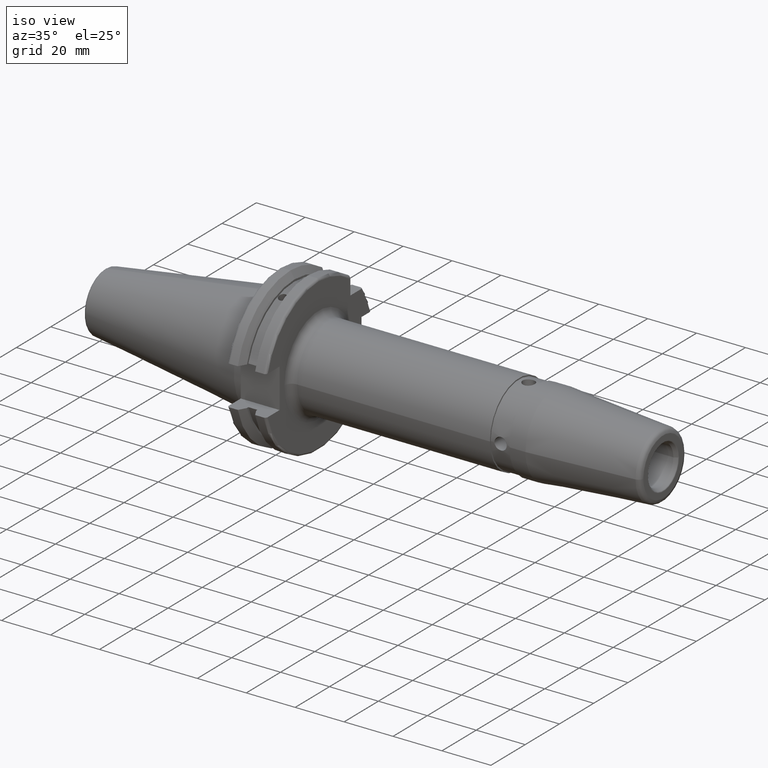
[diagram: clean part render]
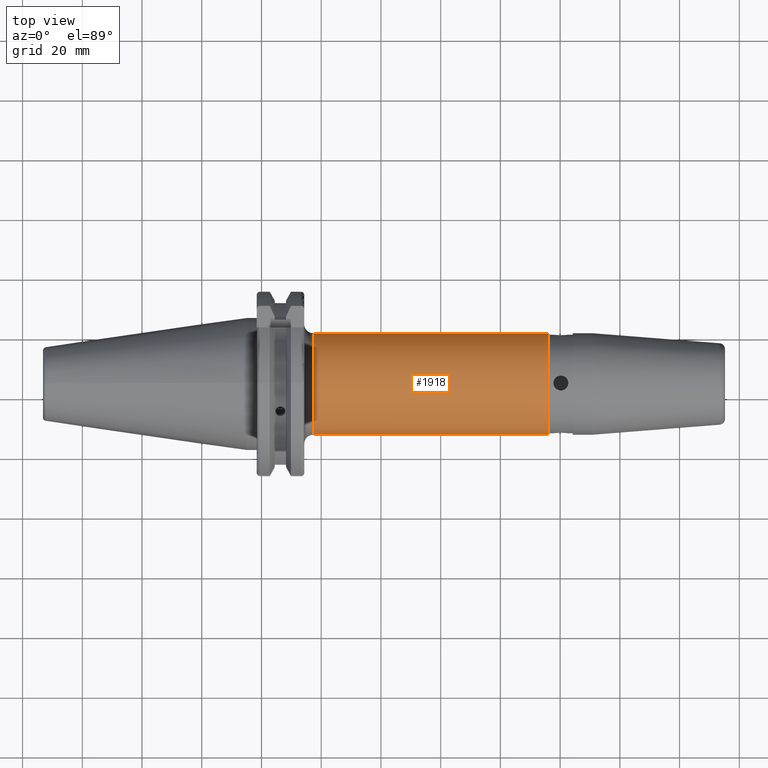
[diagram: tour spotlight — one face highlighted and labeled with its STEP entity id]
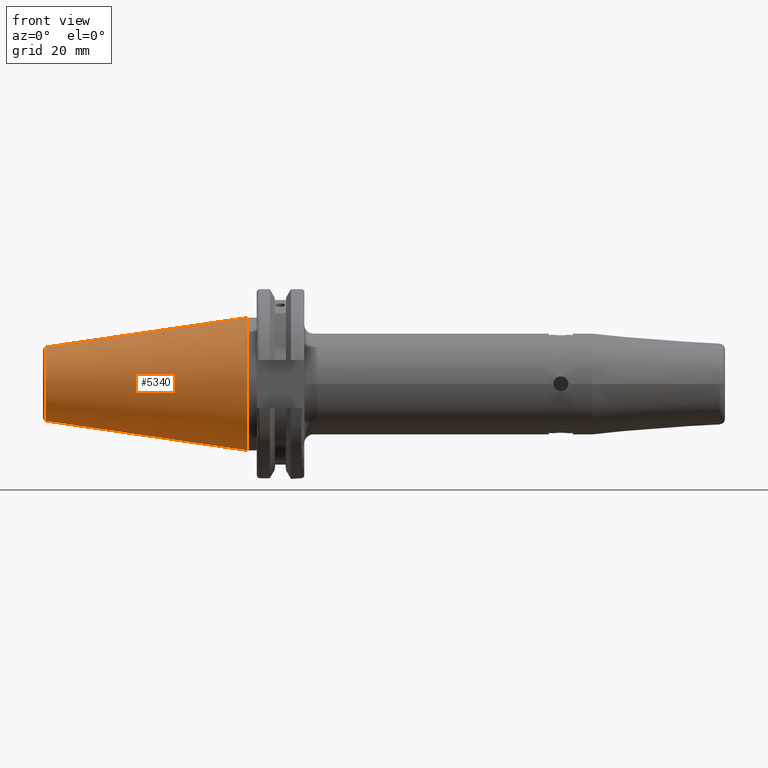
[diagram: tour spotlight — one face highlighted and labeled with its STEP entity id]
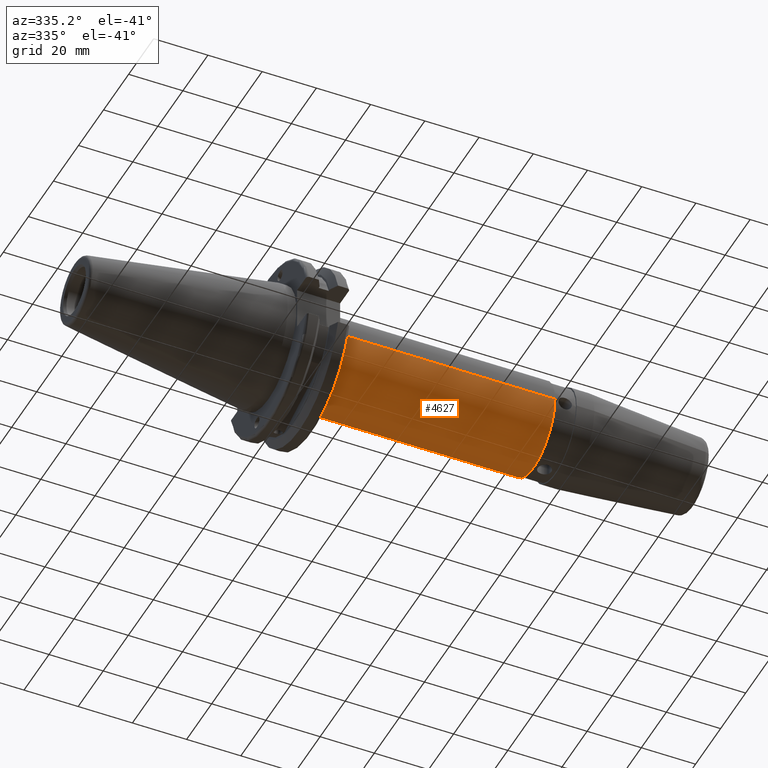
[diagram: tour spotlight — one face highlighted and labeled with its STEP entity id]
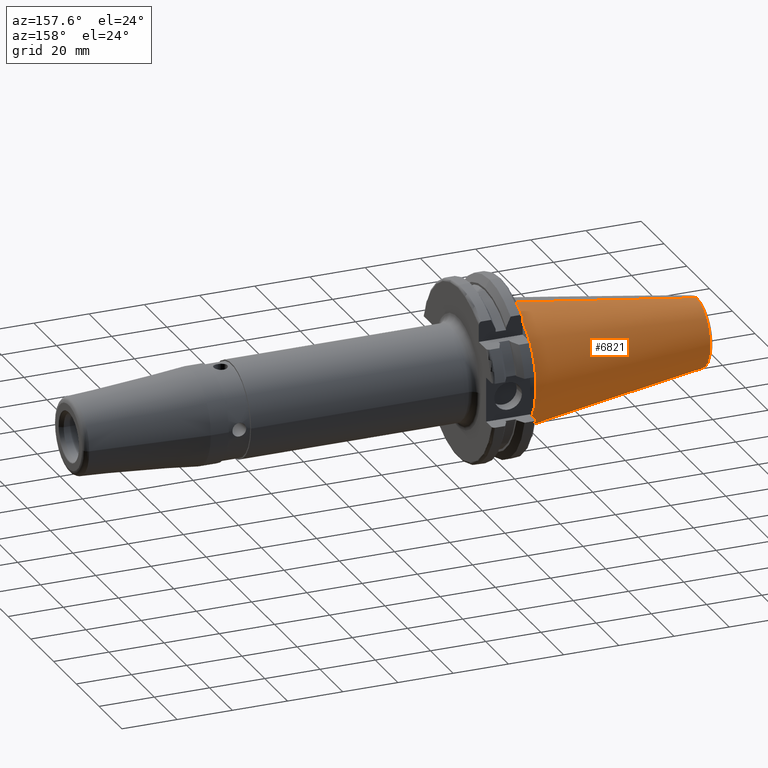
[diagram: tour spotlight — one face highlighted and labeled with its STEP entity id]
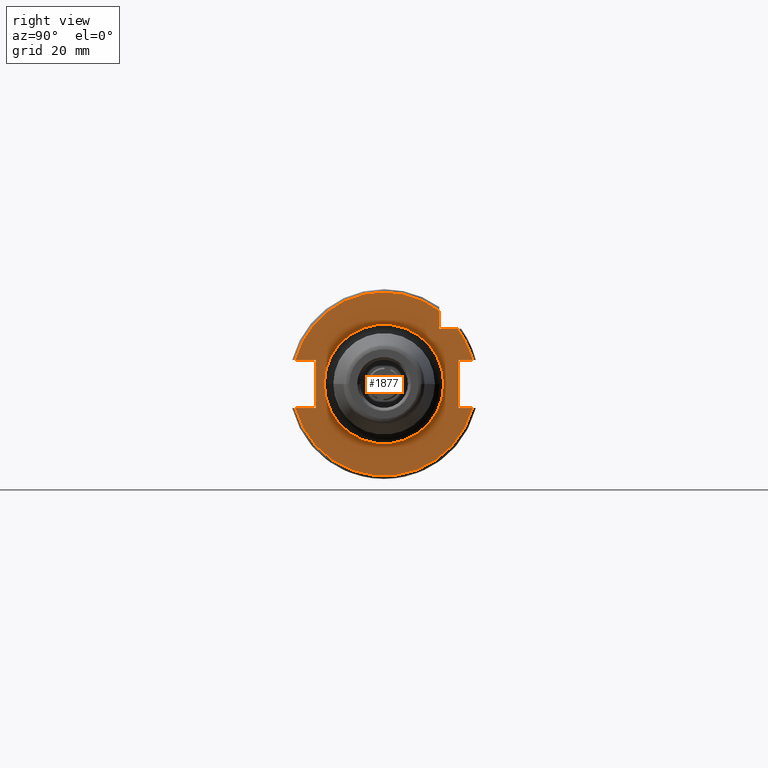
[diagram: tour spotlight — one face highlighted and labeled with its STEP entity id]
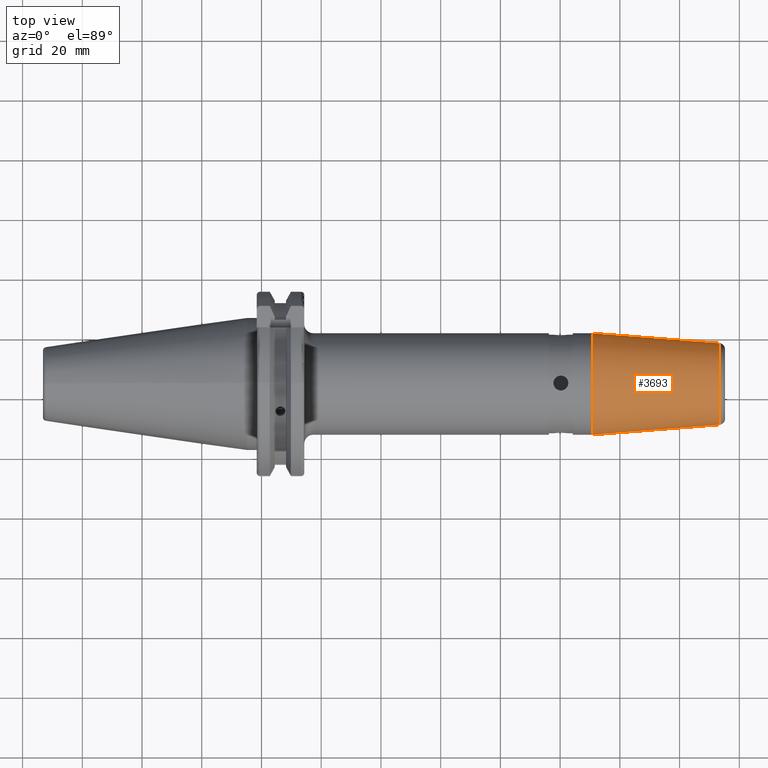
[diagram: tour spotlight — one face highlighted and labeled with its STEP entity id]
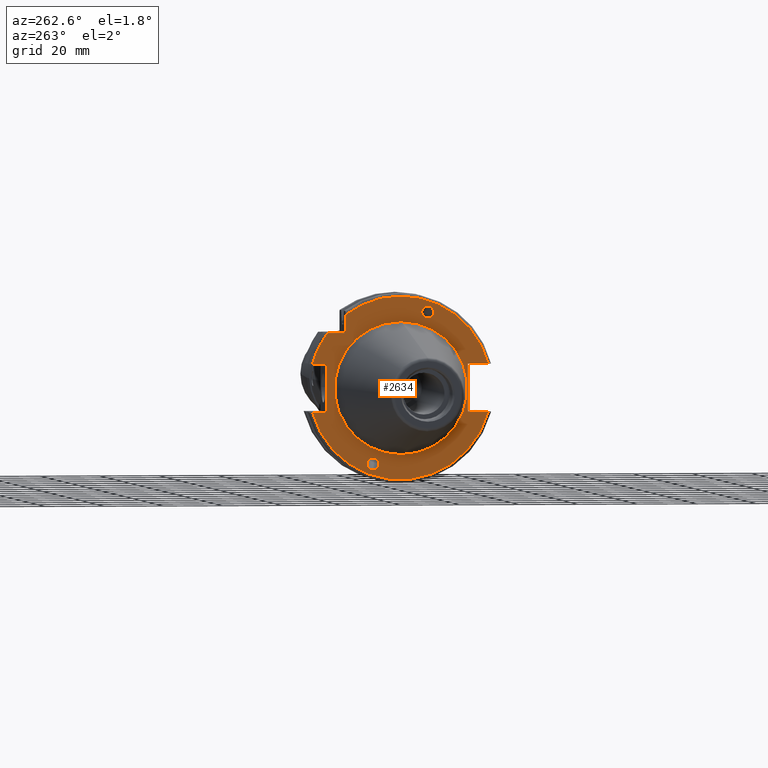
[diagram: tour spotlight — one face highlighted and labeled with its STEP entity id]
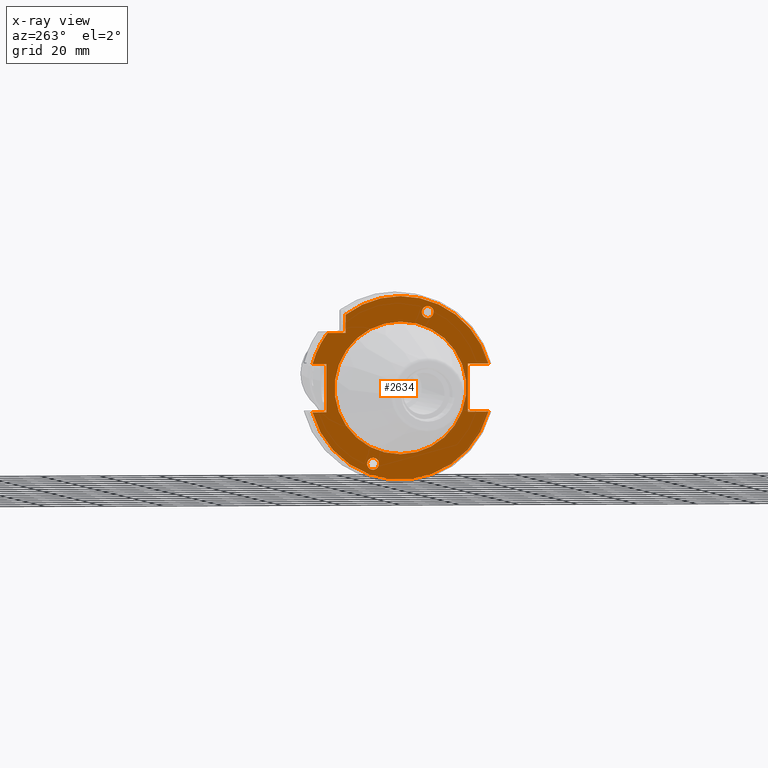
[diagram: x-ray of the same camera — body ghosted, this tour face saturated]
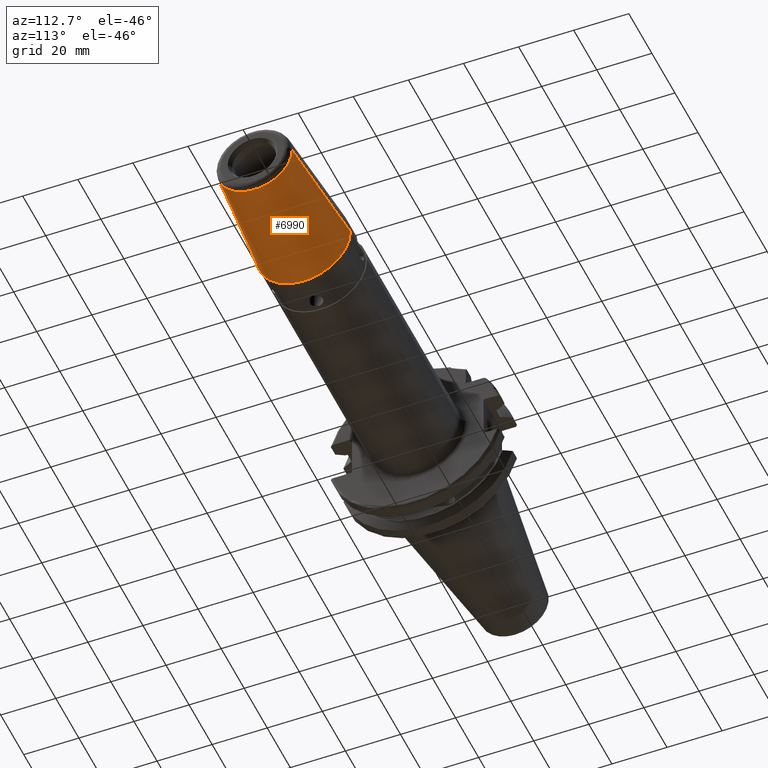
[diagram: tour spotlight — one face highlighted and labeled with its STEP entity id]
A machine part: a face-by-face anatomy tour. The part has 238 B-rep faces; the first image is the clean iso view, then the 8 largest visible faces are spotlighted one at a time (largest first), each with its STEP entity span.

Face 1 — top view, entity #1918. In plain terms, the highlighted cylindrical surface (partial cylindrical patch) has radius 17 mm, axis along (-1, 0, 0).
Definition (entity closure, byte-faithful):
#116 = ORIENTED_EDGE ( 'NONE', *, *, #4703, .F. ) ;
#803 = CIRCLE ( 'NONE', #1233, 17.00000000000000000 ) ;
#1038 = AXIS2_PLACEMENT_3D ( 'NONE', #4816, #1562, #5360 ) ;
#1070 = CARTESIAN_POINT ( 'NONE',  ( 5.775853106663938696, 2.081899558550500280E-15, -17.00000000000000000 ) ) ;
#1125 = VERTEX_POINT ( 'NONE', #3922 ) ;
#1233 = AXIS2_PLACEMENT_3D ( 'NONE', #2194, #5992, #2765 ) ;
#1275 = EDGE_LOOP ( 'NONE', ( #6211, #2809, #2705, #116 ) ) ;
#1318 = VERTEX_POINT ( 'NONE', #5829 ) ;
#1330 = DIRECTION ( 'NONE',  ( -1.000000000000000000, 0.0000000000000000000, 0.0000000000000000000 ) ) ;
#1334 = EDGE_CURVE ( 'NONE', #1125, #6564, #1523, .T. ) ;
#1518 = FACE_OUTER_BOUND ( 'NONE', #1275, .T. ) ;
#1523 = LINE ( 'NONE', #6262, #5675 ) ;
#1562 = DIRECTION ( 'NONE',  ( -1.000000000000000000, 0.0000000000000000000, 0.0000000000000000000 ) ) ;
#1895 = CIRCLE ( 'NONE', #1038, 17.00000000000000355 ) ;
#1918 = ADVANCED_FACE ( 'NONE', ( #1518 ), #5673, .T. ) ;
#2194 = CARTESIAN_POINT ( 'NONE',  ( 101.0000000000244711, 0.0000000000000000000, 0.0000000000000000000 ) ) ;
#2261 = AXIS2_PLACEMENT_3D ( 'NONE', #3466, #1330, #4000 ) ;
#2705 = ORIENTED_EDGE ( 'NONE', *, *, #1334, .T. ) ;
#2765 = DIRECTION ( 'NONE',  ( 0.0000000000000000000, 0.0000000000000000000, 1.000000000000000000 ) ) ;
#2809 = ORIENTED_EDGE ( 'NONE', *, *, #3487, .T. ) ;
#3466 = CARTESIAN_POINT ( 'NONE',  ( 5.775853106663938696, 0.0000000000000000000, 0.0000000000000000000 ) ) ;
#3487 = EDGE_CURVE ( 'NONE', #3701, #1125, #803, .T. ) ;
#3701 = VERTEX_POINT ( 'NONE', #6129 ) ;
#3922 = CARTESIAN_POINT ( 'NONE',  ( 101.0000000000244711, 0.0000000000000000000, 17.00000000000000000 ) ) ;
#4000 = DIRECTION ( 'NONE',  ( 0.0000000000000000000, 0.0000000000000000000, 1.000000000000000000 ) ) ;
#4624 = VECTOR ( 'NONE', #6477, 1000.000000000000000 ) ;
#4665 = CARTESIAN_POINT ( 'NONE',  ( 22.09999999999999787, 0.0000000000000000000, 17.00000000000000355 ) ) ;
#4703 = EDGE_CURVE ( 'NONE', #1318, #6564, #1895, .T. ) ;
#4816 = CARTESIAN_POINT ( 'NONE',  ( 22.09999999999999787, 0.0000000000000000000, 0.0000000000000000000 ) ) ;
#5360 = DIRECTION ( 'NONE',  ( 0.0000000000000000000, 0.0000000000000000000, 1.000000000000000000 ) ) ;
#5658 = EDGE_CURVE ( 'NONE', #3701, #1318, #6066, .T. ) ;
#5673 = CYLINDRICAL_SURFACE ( 'NONE', #2261, 17.00000000000000000 ) ;
#5675 = VECTOR ( 'NONE', #6202, 1000.000000000000000 ) ;
#5829 = CARTESIAN_POINT ( 'NONE',  ( 22.09999999999999787, 2.265596578422603791E-15, -17.00000000000000355 ) ) ;
#5992 = DIRECTION ( 'NONE',  ( -1.000000000000000000, 0.0000000000000000000, 0.0000000000000000000 ) ) ;
#6066 = LINE ( 'NONE', #1070, #4624 ) ;
#6129 = CARTESIAN_POINT ( 'NONE',  ( 101.0000000000244711, 2.081899558550500280E-15, -17.00000000000000000 ) ) ;
#6202 = DIRECTION ( 'NONE',  ( -1.000000000000000000, 0.0000000000000000000, 0.0000000000000000000 ) ) ;
#6211 = ORIENTED_EDGE ( 'NONE', *, *, #5658, .F. ) ;
#6262 = CARTESIAN_POINT ( 'NONE',  ( 5.775853106663938696, 0.0000000000000000000, 17.00000000000000000 ) ) ;
#6477 = DIRECTION ( 'NONE',  ( -1.000000000000000000, 0.0000000000000000000, 0.0000000000000000000 ) ) ;
#6564 = VERTEX_POINT ( 'NONE', #4665 ) ;

Face 2 — front view, entity #5340. In plain terms, the highlighted conical surface has half-angle 8.297 deg.
Definition (entity closure, byte-faithful):
#187 = EDGE_CURVE ( 'NONE', #410, #784, #5043, .T. ) ;
#218 = CONICAL_SURFACE ( 'NONE', #2621, 22.22499999999999787, 0.1448138465474189118 ) ;
#250 = CIRCLE ( 'NONE', #7003, 22.22499999999999787 ) ;
#385 = FACE_OUTER_BOUND ( 'NONE', #3033, .T. ) ;
#410 = VERTEX_POINT ( 'NONE', #1937 ) ;
#448 = VERTEX_POINT ( 'NONE', #1395 ) ;
#784 = VERTEX_POINT ( 'NONE', #1970 ) ;
#1133 = LINE ( 'NONE', #4701, #5632 ) ;
#1136 = DIRECTION ( 'NONE',  ( 0.0000000000000000000, -1.000000000000000000, 0.0000000000000000000 ) ) ;
#1261 = ORIENTED_EDGE ( 'NONE', *, *, #4842, .F. ) ;
#1316 = EDGE_CURVE ( 'NONE', #5089, #448, #250, .T. ) ;
#1395 = CARTESIAN_POINT ( 'NONE',  ( 7.484490501772129649E-15, -22.22500000000000142, 2.646880576125210709E-15 ) ) ;
#1612 = AXIS2_PLACEMENT_3D ( 'NONE', #3254, #3980, #1136 ) ;
#1713 = CARTESIAN_POINT ( 'NONE',  ( -5.455965978649011723E-16, 22.22499999999999432, -7.489693497978174534E-17 ) ) ;
#1883 = DIRECTION ( 'NONE',  ( -1.806543779445901364E-16, 1.000000000000000000, 0.0000000000000000000 ) ) ;
#1937 = CARTESIAN_POINT ( 'NONE',  ( -67.37316987272077995, 12.39965328847052639, 1.443622636046458401E-15 ) ) ;
#1970 = CARTESIAN_POINT ( 'NONE',  ( -67.37316987272077995, -12.39965328847055837, -7.489693497978174534E-17 ) ) ;
#2055 = ORIENTED_EDGE ( 'NONE', *, *, #1316, .T. ) ;
#2621 = AXIS2_PLACEMENT_3D ( 'NONE', #4594, #6192, #1883 ) ;
#3033 = EDGE_LOOP ( 'NONE', ( #1261, #3794, #5778, #2055 ) ) ;
#3254 = CARTESIAN_POINT ( 'NONE',  ( -67.37316987272077995, -1.561251128379126385E-14, -7.489693497978174534E-17 ) ) ;
#3395 = DIRECTION ( 'NONE',  ( 0.9895327864921745764, -0.1443082272673067434, 1.767266086135362423E-17 ) ) ;
#3794 = ORIENTED_EDGE ( 'NONE', *, *, #187, .F. ) ;
#3892 = LINE ( 'NONE', #6615, #6746 ) ;
#3980 = DIRECTION ( 'NONE',  ( -1.000000000000000000, -1.806543779445901364E-16, 0.0000000000000000000 ) ) ;
#4594 = CARTESIAN_POINT ( 'NONE',  ( 3.469446951953614189E-15, -3.469446951953614189E-15, -7.489693497978174534E-17 ) ) ;
#4701 = CARTESIAN_POINT ( 'NONE',  ( -5.455965978649011723E-16, 22.22499999999999432, -7.489693497978174534E-17 ) ) ;
#4842 = EDGE_CURVE ( 'NONE', #784, #448, #3892, .T. ) ;
#5043 = CIRCLE ( 'NONE', #1612, 12.39965328847054060 ) ;
#5089 = VERTEX_POINT ( 'NONE', #1713 ) ;
#5247 = DIRECTION ( 'NONE',  ( 0.9895327864921743544, 0.1443082272673070765, 0.0000000000000000000 ) ) ;
#5340 = ADVANCED_FACE ( 'NONE', ( #385 ), #218, .T. ) ;
#5632 = VECTOR ( 'NONE', #5247, 1000.000000000000000 ) ;
#5778 = ORIENTED_EDGE ( 'NONE', *, *, #6068, .T. ) ;
#5871 = CARTESIAN_POINT ( 'NONE',  ( 3.469446951953614189E-15, -3.469446951953614189E-15, -7.489693497978174534E-17 ) ) ;
#5931 = DIRECTION ( 'NONE',  ( -1.000000000000000000, -1.806543779445901364E-16, 0.0000000000000000000 ) ) ;
#6068 = EDGE_CURVE ( 'NONE', #410, #5089, #1133, .T. ) ;
#6183 = DIRECTION ( 'NONE',  ( 1.806543779445901364E-16, -1.000000000000000000, 0.0000000000000000000 ) ) ;
#6192 = DIRECTION ( 'NONE',  ( 1.000000000000000000, 1.806543779445901364E-16, 0.0000000000000000000 ) ) ;
#6615 = CARTESIAN_POINT ( 'NONE',  ( 7.484490501772129649E-15, -22.22500000000000142, 2.646880576125210709E-15 ) ) ;
#6746 = VECTOR ( 'NONE', #3395, 999.9999999999998863 ) ;
#7003 = AXIS2_PLACEMENT_3D ( 'NONE', #5871, #5931, #6183 ) ;

Face 3 — auxiliary view, entity #4627. In plain terms, the highlighted cylindrical surface (partial cylindrical patch) has radius 17 mm, axis along (-1, 0, 0).
Definition (entity closure, byte-faithful):
#138 = CIRCLE ( 'NONE', #4914, 17.00000000000000000 ) ;
#329 = AXIS2_PLACEMENT_3D ( 'NONE', #4743, #1495, #5287 ) ;
#647 = DIRECTION ( 'NONE',  ( -1.000000000000000000, 0.0000000000000000000, 0.0000000000000000000 ) ) ;
#799 = ORIENTED_EDGE ( 'NONE', *, *, #5080, .T. ) ;
#1070 = CARTESIAN_POINT ( 'NONE',  ( 5.775853106663938696, 2.081899558550500280E-15, -17.00000000000000000 ) ) ;
#1074 = DIRECTION ( 'NONE',  ( -1.000000000000000000, 0.0000000000000000000, 0.0000000000000000000 ) ) ;
#1125 = VERTEX_POINT ( 'NONE', #3922 ) ;
#1318 = VERTEX_POINT ( 'NONE', #5829 ) ;
#1334 = EDGE_CURVE ( 'NONE', #1125, #6564, #1523, .T. ) ;
#1495 = DIRECTION ( 'NONE',  ( -1.000000000000000000, 0.0000000000000000000, 0.0000000000000000000 ) ) ;
#1523 = LINE ( 'NONE', #6262, #5675 ) ;
#2306 = EDGE_CURVE ( 'NONE', #6564, #1318, #5088, .T. ) ;
#2368 = ORIENTED_EDGE ( 'NONE', *, *, #1334, .F. ) ;
#3698 = CYLINDRICAL_SURFACE ( 'NONE', #329, 17.00000000000000000 ) ;
#3701 = VERTEX_POINT ( 'NONE', #6129 ) ;
#3909 = CARTESIAN_POINT ( 'NONE',  ( 101.0000000000244711, 0.0000000000000000000, 0.0000000000000000000 ) ) ;
#3922 = CARTESIAN_POINT ( 'NONE',  ( 101.0000000000244711, 0.0000000000000000000, 17.00000000000000000 ) ) ;
#4343 = CARTESIAN_POINT ( 'NONE',  ( 22.09999999999999787, 0.0000000000000000000, 0.0000000000000000000 ) ) ;
#4447 = DIRECTION ( 'NONE',  ( 0.0000000000000000000, 0.0000000000000000000, 1.000000000000000000 ) ) ;
#4624 = VECTOR ( 'NONE', #6477, 1000.000000000000000 ) ;
#4627 = ADVANCED_FACE ( 'NONE', ( #6568 ), #3698, .T. ) ;
#4665 = CARTESIAN_POINT ( 'NONE',  ( 22.09999999999999787, 0.0000000000000000000, 17.00000000000000355 ) ) ;
#4743 = CARTESIAN_POINT ( 'NONE',  ( 5.775853106663938696, 0.0000000000000000000, 0.0000000000000000000 ) ) ;
#4815 = AXIS2_PLACEMENT_3D ( 'NONE', #4343, #1074, #4882 ) ;
#4882 = DIRECTION ( 'NONE',  ( 0.0000000000000000000, 0.0000000000000000000, 1.000000000000000000 ) ) ;
#4914 = AXIS2_PLACEMENT_3D ( 'NONE', #3909, #647, #4447 ) ;
#5080 = EDGE_CURVE ( 'NONE', #1125, #3701, #138, .T. ) ;
#5088 = CIRCLE ( 'NONE', #4815, 17.00000000000000355 ) ;
#5287 = DIRECTION ( 'NONE',  ( 0.0000000000000000000, 0.0000000000000000000, 1.000000000000000000 ) ) ;
#5658 = EDGE_CURVE ( 'NONE', #3701, #1318, #6066, .T. ) ;
#5675 = VECTOR ( 'NONE', #6202, 1000.000000000000000 ) ;
#5800 = ORIENTED_EDGE ( 'NONE', *, *, #2306, .F. ) ;
#5829 = CARTESIAN_POINT ( 'NONE',  ( 22.09999999999999787, 2.265596578422603791E-15, -17.00000000000000355 ) ) ;
#6066 = LINE ( 'NONE', #1070, #4624 ) ;
#6129 = CARTESIAN_POINT ( 'NONE',  ( 101.0000000000244711, 2.081899558550500280E-15, -17.00000000000000000 ) ) ;
#6202 = DIRECTION ( 'NONE',  ( -1.000000000000000000, 0.0000000000000000000, 0.0000000000000000000 ) ) ;
#6262 = CARTESIAN_POINT ( 'NONE',  ( 5.775853106663938696, 0.0000000000000000000, 17.00000000000000000 ) ) ;
#6477 = DIRECTION ( 'NONE',  ( -1.000000000000000000, 0.0000000000000000000, 0.0000000000000000000 ) ) ;
#6549 = EDGE_LOOP ( 'NONE', ( #799, #6714, #5800, #2368 ) ) ;
#6564 = VERTEX_POINT ( 'NONE', #4665 ) ;
#6568 = FACE_OUTER_BOUND ( 'NONE', #6549, .T. ) ;
#6714 = ORIENTED_EDGE ( 'NONE', *, *, #5658, .T. ) ;

Face 4 — auxiliary view, entity #6821. In plain terms, the highlighted conical surface has half-angle 8.297 deg.
Definition (entity closure, byte-faithful):
#210 = CONICAL_SURFACE ( 'NONE', #4129, 22.22499999999999787, 0.1448138465474189118 ) ;
#410 = VERTEX_POINT ( 'NONE', #1937 ) ;
#448 = VERTEX_POINT ( 'NONE', #1395 ) ;
#578 = CARTESIAN_POINT ( 'NONE',  ( 3.469446951953614189E-15, -3.469446951953614189E-15, -7.489693497978174534E-17 ) ) ;
#784 = VERTEX_POINT ( 'NONE', #1970 ) ;
#1014 = ORIENTED_EDGE ( 'NONE', *, *, #6893, .T. ) ;
#1114 = DIRECTION ( 'NONE',  ( 1.806543779445901364E-16, -1.000000000000000000, 0.0000000000000000000 ) ) ;
#1133 = LINE ( 'NONE', #4701, #5632 ) ;
#1395 = CARTESIAN_POINT ( 'NONE',  ( 7.484490501772129649E-15, -22.22500000000000142, 2.646880576125210709E-15 ) ) ;
#1586 = CARTESIAN_POINT ( 'NONE',  ( 3.469446951953614189E-15, -3.469446951953614189E-15, -7.489693497978174534E-17 ) ) ;
#1713 = CARTESIAN_POINT ( 'NONE',  ( -5.455965978649011723E-16, 22.22499999999999432, -7.489693497978174534E-17 ) ) ;
#1786 = EDGE_LOOP ( 'NONE', ( #6186, #6967, #1014, #5306 ) ) ;
#1937 = CARTESIAN_POINT ( 'NONE',  ( -67.37316987272077995, 12.39965328847052639, 1.443622636046458401E-15 ) ) ;
#1970 = CARTESIAN_POINT ( 'NONE',  ( -67.37316987272077995, -12.39965328847055837, -7.489693497978174534E-17 ) ) ;
#2123 = DIRECTION ( 'NONE',  ( -1.806543779445901364E-16, 1.000000000000000000, 0.0000000000000000000 ) ) ;
#2147 = CARTESIAN_POINT ( 'NONE',  ( -67.37316987272077995, -1.561251128379126385E-14, -7.489693497978174534E-17 ) ) ;
#2189 = CIRCLE ( 'NONE', #4467, 12.39965328847054060 ) ;
#2288 = EDGE_CURVE ( 'NONE', #784, #410, #2189, .T. ) ;
#2720 = DIRECTION ( 'NONE',  ( 0.0000000000000000000, -1.000000000000000000, 0.0000000000000000000 ) ) ;
#3288 = FACE_OUTER_BOUND ( 'NONE', #1786, .T. ) ;
#3395 = DIRECTION ( 'NONE',  ( 0.9895327864921745764, -0.1443082272673067434, 1.767266086135362423E-17 ) ) ;
#3892 = LINE ( 'NONE', #6615, #6746 ) ;
#4129 = AXIS2_PLACEMENT_3D ( 'NONE', #1586, #5375, #2123 ) ;
#4378 = CIRCLE ( 'NONE', #6666, 22.22499999999999787 ) ;
#4390 = DIRECTION ( 'NONE',  ( -1.000000000000000000, -1.806543779445901364E-16, 0.0000000000000000000 ) ) ;
#4467 = AXIS2_PLACEMENT_3D ( 'NONE', #2147, #5948, #2720 ) ;
#4701 = CARTESIAN_POINT ( 'NONE',  ( -5.455965978649011723E-16, 22.22499999999999432, -7.489693497978174534E-17 ) ) ;
#4842 = EDGE_CURVE ( 'NONE', #784, #448, #3892, .T. ) ;
#5089 = VERTEX_POINT ( 'NONE', #1713 ) ;
#5247 = DIRECTION ( 'NONE',  ( 0.9895327864921743544, 0.1443082272673070765, 0.0000000000000000000 ) ) ;
#5306 = ORIENTED_EDGE ( 'NONE', *, *, #6068, .F. ) ;
#5375 = DIRECTION ( 'NONE',  ( 1.000000000000000000, 1.806543779445901364E-16, 0.0000000000000000000 ) ) ;
#5632 = VECTOR ( 'NONE', #5247, 1000.000000000000000 ) ;
#5948 = DIRECTION ( 'NONE',  ( -1.000000000000000000, -1.806543779445901364E-16, 0.0000000000000000000 ) ) ;
#6068 = EDGE_CURVE ( 'NONE', #410, #5089, #1133, .T. ) ;
#6186 = ORIENTED_EDGE ( 'NONE', *, *, #2288, .F. ) ;
#6615 = CARTESIAN_POINT ( 'NONE',  ( 7.484490501772129649E-15, -22.22500000000000142, 2.646880576125210709E-15 ) ) ;
#6666 = AXIS2_PLACEMENT_3D ( 'NONE', #578, #4390, #1114 ) ;
#6746 = VECTOR ( 'NONE', #3395, 999.9999999999998863 ) ;
#6821 = ADVANCED_FACE ( 'NONE', ( #3288 ), #210, .T. ) ;
#6893 = EDGE_CURVE ( 'NONE', #448, #5089, #4378, .T. ) ;
#6967 = ORIENTED_EDGE ( 'NONE', *, *, #4842, .T. ) ;

Face 5 — right view, entity #1877. In plain terms, the highlighted planar face has unit normal (-1, -0, 0).
Definition (entity closure, byte-faithful):
#21 = VERTEX_POINT ( 'NONE', #3423 ) ;
#213 = VERTEX_POINT ( 'NONE', #2704 ) ;
#221 = VERTEX_POINT ( 'NONE', #3046 ) ;
#245 = FACE_BOUND ( 'NONE', #4546, .T. ) ;
#255 = CARTESIAN_POINT ( 'NONE',  ( 19.09999999999999432, 0.0000000000000000000, -7.489693497978174534E-17 ) ) ;
#270 = EDGE_CURVE ( 'NONE', #3464, #3057, #3272, .T. ) ;
#282 = CARTESIAN_POINT ( 'NONE',  ( 19.10000000000000142, -8.050000000000006040, 29.70350358122756518 ) ) ;
#346 = AXIS2_PLACEMENT_3D ( 'NONE', #6280, #6345, #6393 ) ;
#391 = AXIS2_PLACEMENT_3D ( 'NONE', #255, #4107, #3268 ) ;
#426 = EDGE_CURVE ( 'NONE', #221, #6654, #1286, .T. ) ;
#452 = EDGE_CURVE ( 'NONE', #4606, #3057, #3860, .T. ) ;
#464 = DIRECTION ( 'NONE',  ( 0.0000000000000000000, 0.0000000000000000000, 1.000000000000000000 ) ) ;
#531 = DIRECTION ( 'NONE',  ( -1.000000000000000000, 0.0000000000000000000, 0.0000000000000000000 ) ) ;
#752 = CARTESIAN_POINT ( 'NONE',  ( 19.09999999999999787, -18.50000000000000355, 24.59371108637325776 ) ) ;
#830 = EDGE_CURVE ( 'NONE', #21, #1892, #1016, .T. ) ;
#887 = VERTEX_POINT ( 'NONE', #3019 ) ;
#920 = ORIENTED_EDGE ( 'NONE', *, *, #452, .F. ) ;
#944 = ORIENTED_EDGE ( 'NONE', *, *, #2668, .F. ) ;
#1016 = CIRCLE ( 'NONE', #1711, 30.77499999999998437 ) ;
#1146 = CARTESIAN_POINT ( 'NONE',  ( 19.10000000000000853, -8.050000000000006040, -22.79999999999999716 ) ) ;
#1217 = DIRECTION ( 'NONE',  ( 0.0000000000000000000, 0.0000000000000000000, 1.000000000000000000 ) ) ;
#1286 = LINE ( 'NONE', #1616, #4016 ) ;
#1307 = CARTESIAN_POINT ( 'NONE',  ( 19.10000000000000142, 8.049999999999993605, 24.99999999999999645 ) ) ;
#1328 = EDGE_CURVE ( 'NONE', #4385, #4478, #6022, .T. ) ;
#1445 = VERTEX_POINT ( 'NONE', #4696 ) ;
#1524 = AXIS2_PLACEMENT_3D ( 'NONE', #3920, #5585, #2344 ) ;
#1602 = EDGE_CURVE ( 'NONE', #6654, #4606, #6109, .T. ) ;
#1616 = CARTESIAN_POINT ( 'NONE',  ( 19.10000000000000142, 8.049999999999993605, 24.99999999999999645 ) ) ;
#1688 = DIRECTION ( 'NONE',  ( 0.0000000000000000000, 1.000000000000000000, 0.0000000000000000000 ) ) ;
#1700 = CARTESIAN_POINT ( 'NONE',  ( 19.09999999999999432, 0.0000000000000000000, -7.489693497978174534E-17 ) ) ;
#1711 = AXIS2_PLACEMENT_3D ( 'NONE', #5277, #5178, #5670 ) ;
#1770 = EDGE_CURVE ( 'NONE', #1892, #887, #2021, .T. ) ;
#1789 = EDGE_CURVE ( 'NONE', #6671, #21, #3997, .T. ) ;
#1795 = PLANE ( 'NONE',  #1524 ) ;
#1810 = VECTOR ( 'NONE', #6623, 1000.000000000000000 ) ;
#1877 = ADVANCED_FACE ( 'NONE', ( #245, #6015 ), #1795, .F. ) ;
#1892 = VERTEX_POINT ( 'NONE', #6672 ) ;
#1909 = DIRECTION ( 'NONE',  ( 0.0000000000000000000, 0.0000000000000000000, 1.000000000000000000 ) ) ;
#2021 = CIRCLE ( 'NONE', #6023, 30.77499999999998437 ) ;
#2024 = CARTESIAN_POINT ( 'NONE',  ( 19.10000000000000853, -8.050000000000006040, -22.79999999999999716 ) ) ;
#2079 = ORIENTED_EDGE ( 'NONE', *, *, #1328, .F. ) ;
#2080 = ORIENTED_EDGE ( 'NONE', *, *, #5272, .T. ) ;
#2088 = LINE ( 'NONE', #6992, #6410 ) ;
#2216 = CARTESIAN_POINT ( 'NONE',  ( 19.09999999999999787, 2.449293598294706513E-15, -20.00000000000000355 ) ) ;
#2223 = CARTESIAN_POINT ( 'NONE',  ( 19.10000000000000853, 8.049999999999993605, -29.70350358122756873 ) ) ;
#2238 = DIRECTION ( 'NONE',  ( 2.254717759190002446E-16, -1.000000000000000000, 0.0000000000000000000 ) ) ;
#2344 = DIRECTION ( 'NONE',  ( 1.806543779445901364E-16, -1.000000000000000000, 0.0000000000000000000 ) ) ;
#2350 = LINE ( 'NONE', #2945, #5225 ) ;
#2376 = DIRECTION ( 'NONE',  ( 0.0000000000000000000, 1.000000000000000000, 0.0000000000000000000 ) ) ;
#2573 = CARTESIAN_POINT ( 'NONE',  ( 19.10000000000000142, 8.049999999999993605, 24.99999999999999645 ) ) ;
#2668 = EDGE_CURVE ( 'NONE', #1445, #4385, #5924, .T. ) ;
#2704 = CARTESIAN_POINT ( 'NONE',  ( 19.09999999999999787, 0.0000000000000000000, 20.00000000000000355 ) ) ;
#2796 = DIRECTION ( 'NONE',  ( -1.806543779445901364E-16, 1.000000000000000000, 4.730570686887106103E-16 ) ) ;
#2874 = EDGE_CURVE ( 'NONE', #221, #4478, #2088, .T. ) ;
#2945 = CARTESIAN_POINT ( 'NONE',  ( 19.10000000000000853, 8.049999999999993605, -22.79999999999999716 ) ) ;
#3019 = CARTESIAN_POINT ( 'NONE',  ( 19.09999999999999787, -24.59371108637326486, 18.50000000000000000 ) ) ;
#3046 = CARTESIAN_POINT ( 'NONE',  ( 19.09999999999999787, -8.050000000000000711, 24.99999999999999645 ) ) ;
#3057 = VERTEX_POINT ( 'NONE', #2223 ) ;
#3102 = ORIENTED_EDGE ( 'NONE', *, *, #426, .F. ) ;
#3215 = AXIS2_PLACEMENT_3D ( 'NONE', #6943, #3731, #464 ) ;
#3268 = DIRECTION ( 'NONE',  ( 2.254717759190002446E-16, -1.000000000000000000, 0.0000000000000000000 ) ) ;
#3272 = LINE ( 'NONE', #6590, #1810 ) ;
#3351 = CARTESIAN_POINT ( 'NONE',  ( 19.09999999999999076, 30.77499999999997726, 18.50000000000002487 ) ) ;
#3423 = CARTESIAN_POINT ( 'NONE',  ( 19.10000000000000853, -8.050000000000006040, -29.70350358122756518 ) ) ;
#3464 = VERTEX_POINT ( 'NONE', #4879 ) ;
#3523 = VERTEX_POINT ( 'NONE', #2216 ) ;
#3624 = LINE ( 'NONE', #3351, #5056 ) ;
#3667 = CARTESIAN_POINT ( 'NONE',  ( 19.10000000000000142, 8.049999999999993605, 29.70350358122756518 ) ) ;
#3706 = CIRCLE ( 'NONE', #3215, 20.00000000000000355 ) ;
#3731 = DIRECTION ( 'NONE',  ( -1.000000000000000000, 0.0000000000000000000, 0.0000000000000000000 ) ) ;
#3783 = ORIENTED_EDGE ( 'NONE', *, *, #5521, .T. ) ;
#3802 = CARTESIAN_POINT ( 'NONE',  ( 19.10000000000000142, 0.0000000000000000000, 0.0000000000000000000 ) ) ;
#3860 = CIRCLE ( 'NONE', #391, 30.77499999999998437 ) ;
#3920 = CARTESIAN_POINT ( 'NONE',  ( 19.09999999999999076, 30.77499999999998437, -7.489693497978174534E-17 ) ) ;
#3997 = LINE ( 'NONE', #1146, #4745 ) ;
#4016 = VECTOR ( 'NONE', #1688, 1000.000000000000000 ) ;
#4107 = DIRECTION ( 'NONE',  ( -1.000000000000000000, -1.806543779445901364E-16, 0.0000000000000000000 ) ) ;
#4173 = ORIENTED_EDGE ( 'NONE', *, *, #2874, .T. ) ;
#4265 = ORIENTED_EDGE ( 'NONE', *, *, #270, .T. ) ;
#4318 = DIRECTION ( 'NONE',  ( 0.0000000000000000000, 0.0000000000000000000, 1.000000000000000000 ) ) ;
#4339 = DIRECTION ( 'NONE',  ( 0.0000000000000000000, 0.0000000000000000000, 1.000000000000000000 ) ) ;
#4342 = EDGE_CURVE ( 'NONE', #887, #1445, #3624, .T. ) ;
#4365 = ORIENTED_EDGE ( 'NONE', *, *, #5643, .T. ) ;
#4385 = VERTEX_POINT ( 'NONE', #752 ) ;
#4456 = EDGE_LOOP ( 'NONE', ( #4527, #2080, #4265, #920, #6812, #3102, #4173, #2079, #944, #5628, #5087, #6143 ) ) ;
#4478 = VERTEX_POINT ( 'NONE', #282 ) ;
#4511 = VECTOR ( 'NONE', #1217, 1000.000000000000000 ) ;
#4527 = ORIENTED_EDGE ( 'NONE', *, *, #1789, .F. ) ;
#4546 = EDGE_LOOP ( 'NONE', ( #3783, #4365 ) ) ;
#4606 = VERTEX_POINT ( 'NONE', #3667 ) ;
#4645 = AXIS2_PLACEMENT_3D ( 'NONE', #3802, #531, #4339 ) ;
#4649 = VECTOR ( 'NONE', #1909, 1000.000000000000000 ) ;
#4696 = CARTESIAN_POINT ( 'NONE',  ( 19.10000000000000142, -18.50000000000000355, 18.50000000000000000 ) ) ;
#4745 = VECTOR ( 'NONE', #4944, 1000.000000000000000 ) ;
#4879 = CARTESIAN_POINT ( 'NONE',  ( 19.09999999999999432, 8.049999999999991829, -22.79999999999999716 ) ) ;
#4944 = DIRECTION ( 'NONE',  ( 0.0000000000000000000, 0.0000000000000000000, -1.000000000000000000 ) ) ;
#5056 = VECTOR ( 'NONE', #2796, 1000.000000000000000 ) ;
#5087 = ORIENTED_EDGE ( 'NONE', *, *, #1770, .F. ) ;
#5163 = CARTESIAN_POINT ( 'NONE',  ( 19.10000000000000142, -18.50000000000000355, -7.489693497978174534E-17 ) ) ;
#5178 = DIRECTION ( 'NONE',  ( -1.000000000000000000, -1.806543779445901364E-16, 0.0000000000000000000 ) ) ;
#5225 = VECTOR ( 'NONE', #2376, 1000.000000000000000 ) ;
#5272 = EDGE_CURVE ( 'NONE', #6671, #3464, #2350, .T. ) ;
#5277 = CARTESIAN_POINT ( 'NONE',  ( 19.09999999999999432, 0.0000000000000000000, -7.489693497978174534E-17 ) ) ;
#5490 = DIRECTION ( 'NONE',  ( -1.000000000000000000, -1.806543779445901364E-16, 0.0000000000000000000 ) ) ;
#5521 = EDGE_CURVE ( 'NONE', #213, #3523, #3706, .T. ) ;
#5585 = DIRECTION ( 'NONE',  ( -1.000000000000000000, -1.806543779445901364E-16, 0.0000000000000000000 ) ) ;
#5628 = ORIENTED_EDGE ( 'NONE', *, *, #4342, .F. ) ;
#5643 = EDGE_CURVE ( 'NONE', #3523, #213, #6226, .T. ) ;
#5670 = DIRECTION ( 'NONE',  ( 2.254717759190002446E-16, -1.000000000000000000, 0.0000000000000000000 ) ) ;
#5924 = LINE ( 'NONE', #5163, #4649 ) ;
#6015 = FACE_OUTER_BOUND ( 'NONE', #4456, .T. ) ;
#6022 = CIRCLE ( 'NONE', #346, 30.77499999999998437 ) ;
#6023 = AXIS2_PLACEMENT_3D ( 'NONE', #1700, #5490, #2238 ) ;
#6109 = LINE ( 'NONE', #1307, #4511 ) ;
#6143 = ORIENTED_EDGE ( 'NONE', *, *, #830, .F. ) ;
#6226 = CIRCLE ( 'NONE', #4645, 20.00000000000000355 ) ;
#6280 = CARTESIAN_POINT ( 'NONE',  ( 19.09999999999999432, 0.0000000000000000000, -7.489693497978174534E-17 ) ) ;
#6345 = DIRECTION ( 'NONE',  ( -1.000000000000000000, -1.806543779445901364E-16, 0.0000000000000000000 ) ) ;
#6393 = DIRECTION ( 'NONE',  ( 2.254717759190002446E-16, -1.000000000000000000, 0.0000000000000000000 ) ) ;
#6410 = VECTOR ( 'NONE', #4318, 1000.000000000000000 ) ;
#6590 = CARTESIAN_POINT ( 'NONE',  ( 19.10000000000000853, 8.049999999999993605, -22.79999999999999716 ) ) ;
#6623 = DIRECTION ( 'NONE',  ( 0.0000000000000000000, 0.0000000000000000000, -1.000000000000000000 ) ) ;
#6654 = VERTEX_POINT ( 'NONE', #2573 ) ;
#6671 = VERTEX_POINT ( 'NONE', #2024 ) ;
#6672 = CARTESIAN_POINT ( 'NONE',  ( 19.10000000000000142, -30.77499999999998437, -7.489693497978174534E-17 ) ) ;
#6812 = ORIENTED_EDGE ( 'NONE', *, *, #1602, .F. ) ;
#6943 = CARTESIAN_POINT ( 'NONE',  ( 19.10000000000000142, 0.0000000000000000000, 0.0000000000000000000 ) ) ;
#6992 = CARTESIAN_POINT ( 'NONE',  ( 19.10000000000000142, -8.050000000000006040, 24.99999999999999645 ) ) ;

Face 6 — top view, entity #3693. In plain terms, the highlighted conical surface has half-angle 4.5 deg.
Definition (entity closure, byte-faithful):
#1 = DIRECTION ( 'NONE',  ( 0.0000000000000000000, 0.0000000000000000000, 1.000000000000000000 ) ) ;
#161 = DIRECTION ( 'NONE',  ( -1.000000000000000000, 0.0000000000000000000, 0.0000000000000000000 ) ) ;
#362 = CARTESIAN_POINT ( 'NONE',  ( 115.5282834233886859, 0.0000000000000000000, 0.0000000000000000000 ) ) ;
#501 = AXIS2_PLACEMENT_3D ( 'NONE', #6503, #3291, #1 ) ;
#702 = DIRECTION ( 'NONE',  ( 0.0000000000000000000, 0.0000000000000000000, 1.000000000000000000 ) ) ;
#880 = DIRECTION ( 'NONE',  ( -0.9969173337331278528, 9.608468044710130443E-18, -0.07845909572784512398 ) ) ;
#899 = DIRECTION ( 'NONE',  ( 0.0000000000000000000, 0.0000000000000000000, 1.000000000000000000 ) ) ;
#973 = CIRCLE ( 'NONE', #501, 13.64505368414984865 ) ;
#1056 = CONICAL_SURFACE ( 'NONE', #4150, 13.64505368414984865, 0.07853981633974502219 ) ;
#1104 = AXIS2_PLACEMENT_3D ( 'NONE', #362, #4167, #899 ) ;
#1117 = CARTESIAN_POINT ( 'NONE',  ( 115.5282834233886859, 2.081899558550500280E-15, -17.00000000000000000 ) ) ;
#1166 = VECTOR ( 'NONE', #880, 1000.000000000000114 ) ;
#1251 = CARTESIAN_POINT ( 'NONE',  ( 158.1569181914556737, 0.0000000000000000000, 0.0000000000000000000 ) ) ;
#1436 = CARTESIAN_POINT ( 'NONE',  ( 158.1569181914556737, 1.671037131848791138E-15, -13.64505368414984865 ) ) ;
#1681 = CARTESIAN_POINT ( 'NONE',  ( 158.1569181914556737, 1.876468345199645906E-15, -13.64505368414984865 ) ) ;
#1823 = ORIENTED_EDGE ( 'NONE', *, *, #6043, .F. ) ;
#2007 = ORIENTED_EDGE ( 'NONE', *, *, #3514, .T. ) ;
#2046 = EDGE_LOOP ( 'NONE', ( #3685, #6888, #2007, #1823 ) ) ;
#2089 = CARTESIAN_POINT ( 'NONE',  ( 158.1569181914556737, 0.0000000000000000000, 13.64505368414984865 ) ) ;
#2599 = CIRCLE ( 'NONE', #1104, 17.00000000000000000 ) ;
#2752 = EDGE_CURVE ( 'NONE', #3521, #3526, #6916, .T. ) ;
#3013 = CARTESIAN_POINT ( 'NONE',  ( 115.5282834233886859, 0.0000000000000000000, 17.00000000000000000 ) ) ;
#3198 = VERTEX_POINT ( 'NONE', #3013 ) ;
#3291 = DIRECTION ( 'NONE',  ( -1.000000000000000000, 0.0000000000000000000, 0.0000000000000000000 ) ) ;
#3476 = EDGE_CURVE ( 'NONE', #3521, #6238, #973, .T. ) ;
#3514 = EDGE_CURVE ( 'NONE', #6238, #3198, #4985, .T. ) ;
#3521 = VERTEX_POINT ( 'NONE', #1681 ) ;
#3526 = VERTEX_POINT ( 'NONE', #1117 ) ;
#3685 = ORIENTED_EDGE ( 'NONE', *, *, #2752, .F. ) ;
#3693 = ADVANCED_FACE ( 'NONE', ( #5397 ), #1056, .T. ) ;
#4150 = AXIS2_PLACEMENT_3D ( 'NONE', #1251, #161, #702 ) ;
#4167 = DIRECTION ( 'NONE',  ( -1.000000000000000000, 0.0000000000000000000, 0.0000000000000000000 ) ) ;
#4392 = DIRECTION ( 'NONE',  ( -0.9969173337331278528, 0.0000000000000000000, 0.07845909572784512398 ) ) ;
#4924 = CARTESIAN_POINT ( 'NONE',  ( 158.1569181914556737, 0.0000000000000000000, 13.64505368414984865 ) ) ;
#4985 = LINE ( 'NONE', #4924, #6236 ) ;
#5397 = FACE_OUTER_BOUND ( 'NONE', #2046, .T. ) ;
#6043 = EDGE_CURVE ( 'NONE', #3526, #3198, #2599, .T. ) ;
#6236 = VECTOR ( 'NONE', #4392, 1000.000000000000114 ) ;
#6238 = VERTEX_POINT ( 'NONE', #2089 ) ;
#6503 = CARTESIAN_POINT ( 'NONE',  ( 158.1569181914556737, 0.0000000000000000000, 0.0000000000000000000 ) ) ;
#6888 = ORIENTED_EDGE ( 'NONE', *, *, #3476, .T. ) ;
#6916 = LINE ( 'NONE', #1436, #1166 ) ;

Face 7 — auxiliary view, entity #2634. An x-ray twin of the same camera follows (body ghosted, this face saturated) — the face is partly hidden behind the body. In plain terms, the highlighted planar face has unit normal (1, 0, -0).
Definition (entity closure, byte-faithful):
#26 = CIRCLE ( 'NONE', #394, 30.77499999999998792 ) ;
#35 = CIRCLE ( 'NONE', #4429, 2.000000000000001776 ) ;
#83 = DIRECTION ( 'NONE',  ( 1.806543779445901364E-16, -1.000000000000000000, -4.730570686887106103E-16 ) ) ;
#104 = CARTESIAN_POINT ( 'NONE',  ( 3.200000000000005063, -18.50000000000000355, 18.50000000000000000 ) ) ;
#106 = VERTEX_POINT ( 'NONE', #669 ) ;
#123 = VERTEX_POINT ( 'NONE', #567 ) ;
#125 = ORIENTED_EDGE ( 'NONE', *, *, #4683, .F. ) ;
#131 = CARTESIAN_POINT ( 'NONE',  ( 3.200000000000005063, -18.50000000000000355, 18.50000000000000000 ) ) ;
#141 = CARTESIAN_POINT ( 'NONE',  ( 3.200000000000001510, -8.050000000000006040, -29.70350358122739465 ) ) ;
#149 = DIRECTION ( 'NONE',  ( 2.168404344971006896E-16, -1.000000000000000000, 0.0000000000000000000 ) ) ;
#163 = EDGE_CURVE ( 'NONE', #6483, #6896, #5201, .T. ) ;
#185 = DIRECTION ( 'NONE',  ( -1.000000000000000000, -1.806543779445901364E-16, 0.0000000000000000000 ) ) ;
#215 = CARTESIAN_POINT ( 'NONE',  ( 3.200000000000001510, -25.37170076121958928, -9.234543869792895876 ) ) ;
#226 = CARTESIAN_POINT ( 'NONE',  ( 3.200000000000005063, -2.602085213965210642E-15, -7.489693497978174534E-17 ) ) ;
#265 = VECTOR ( 'NONE', #83, 1000.000000000000000 ) ;
#303 = AXIS2_PLACEMENT_3D ( 'NONE', #7001, #3786, #519 ) ;
#342 = CARTESIAN_POINT ( 'NONE',  ( 3.200000000000005063, -2.602085213965210642E-15, -7.489693497978174534E-17 ) ) ;
#369 = ORIENTED_EDGE ( 'NONE', *, *, #2541, .F. ) ;
#379 = CIRCLE ( 'NONE', #4168, 30.77499999999998792 ) ;
#394 = AXIS2_PLACEMENT_3D ( 'NONE', #342, #4149, #872 ) ;
#415 = EDGE_CURVE ( 'NONE', #1958, #3768, #1460, .T. ) ;
#474 = CARTESIAN_POINT ( 'NONE',  ( 3.200000000000001510, -8.050000000000006040, 24.99999999999999645 ) ) ;
#476 = EDGE_CURVE ( 'NONE', #4270, #4350, #5283, .T. ) ;
#496 = DIRECTION ( 'NONE',  ( 0.0000000000000000000, 0.0000000000000000000, 1.000000000000000000 ) ) ;
#519 = DIRECTION ( 'NONE',  ( 1.831958179341876495E-16, -1.000000000000000000, 0.0000000000000000000 ) ) ;
#561 = EDGE_CURVE ( 'NONE', #1717, #6456, #4450, .T. ) ;
#567 = CARTESIAN_POINT ( 'NONE',  ( 3.199999999999994404, 27.37170076121964257, 9.234543869792704029 ) ) ;
#669 = CARTESIAN_POINT ( 'NONE',  ( 3.200000000000001066, 22.22499999999999432, 2.646880576125210709E-15 ) ) ;
#703 = CARTESIAN_POINT ( 'NONE',  ( 3.200000000000001510, 8.049999999999993605, 24.99999999999999645 ) ) ;
#746 = CARTESIAN_POINT ( 'NONE',  ( 3.200000000000005063, -2.602085213965210642E-15, -7.489693497978174534E-17 ) ) ;
#757 = DIRECTION ( 'NONE',  ( 1.831958179341876495E-16, -1.000000000000000000, 0.0000000000000000000 ) ) ;
#763 = DIRECTION ( 'NONE',  ( -1.000000000000000000, -1.806543779445901364E-16, 0.0000000000000000000 ) ) ;
#822 = FACE_BOUND ( 'NONE', #4619, .T. ) ;
#833 = CARTESIAN_POINT ( 'NONE',  ( 3.200000000000001510, 8.049999999999993605, 29.70350358122757939 ) ) ;
#870 = AXIS2_PLACEMENT_3D ( 'NONE', #215, #185, #149 ) ;
#872 = DIRECTION ( 'NONE',  ( 1.831958179341876495E-16, -1.000000000000000000, 0.0000000000000000000 ) ) ;
#986 = CARTESIAN_POINT ( 'NONE',  ( 3.200000000000001510, 8.049999999999993605, 24.99999999999999645 ) ) ;
#1040 = ORIENTED_EDGE ( 'NONE', *, *, #2622, .F. ) ;
#1187 = CARTESIAN_POINT ( 'NONE',  ( 3.199999999999994404, 23.37170076121963902, 9.234543869792732451 ) ) ;
#1234 = VECTOR ( 'NONE', #6453, 1000.000000000000000 ) ;
#1253 = DIRECTION ( 'NONE',  ( 0.0000000000000000000, -1.000000000000000000, 0.0000000000000000000 ) ) ;
#1282 = CARTESIAN_POINT ( 'NONE',  ( 3.200000000000001510, -25.37170076121958928, -9.234543869792895876 ) ) ;
#1284 = DIRECTION ( 'NONE',  ( 1.756187995927026355E-16, -1.000000000000000000, 0.0000000000000000000 ) ) ;
#1387 = CARTESIAN_POINT ( 'NONE',  ( 3.200000000000005063, -2.602085213965210642E-15, -7.489693497978174534E-17 ) ) ;
#1460 = LINE ( 'NONE', #1718, #2942 ) ;
#1587 = VERTEX_POINT ( 'NONE', #833 ) ;
#1653 = CARTESIAN_POINT ( 'NONE',  ( 3.200000000000003286, -27.37170076121958928, -9.234543869792895876 ) ) ;
#1661 = EDGE_CURVE ( 'NONE', #123, #3772, #6689, .T. ) ;
#1676 = DIRECTION ( 'NONE',  ( -1.000000000000000000, -1.806543779445901364E-16, 0.0000000000000000000 ) ) ;
#1716 = CARTESIAN_POINT ( 'NONE',  ( 3.200000000000005063, -18.50000000000000355, 25.83409810695934894 ) ) ;
#1717 = VERTEX_POINT ( 'NONE', #131 ) ;
#1718 = CARTESIAN_POINT ( 'NONE',  ( 3.200000000000001510, 8.049999999999993605, -22.79999999999999716 ) ) ;
#1732 = VERTEX_POINT ( 'NONE', #6866 ) ;
#1916 = ORIENTED_EDGE ( 'NONE', *, *, #4023, .T. ) ;
#1932 = DIRECTION ( 'NONE',  ( 1.831958179341876495E-16, -1.000000000000000000, 0.0000000000000000000 ) ) ;
#1957 = DIRECTION ( 'NONE',  ( 0.0000000000000000000, -1.000000000000000000, 0.0000000000000000000 ) ) ;
#1958 = VERTEX_POINT ( 'NONE', #5687 ) ;
#2102 = FACE_BOUND ( 'NONE', #3533, .T. ) ;
#2113 = EDGE_CURVE ( 'NONE', #1587, #4196, #3242, .T. ) ;
#2157 = VECTOR ( 'NONE', #6377, 1000.000000000000000 ) ;
#2247 = EDGE_CURVE ( 'NONE', #5110, #1717, #2553, .T. ) ;
#2256 = CARTESIAN_POINT ( 'NONE',  ( 3.200000000000005063, -18.50000000000000355, 24.59371108637327197 ) ) ;
#2275 = CARTESIAN_POINT ( 'NONE',  ( 3.200000000000001510, -8.050000000000006040, 29.70350358122698253 ) ) ;
#2372 = VECTOR ( 'NONE', #2832, 1000.000000000000000 ) ;
#2431 = CIRCLE ( 'NONE', #6171, 30.77499999999998792 ) ;
#2498 = DIRECTION ( 'NONE',  ( -1.000000000000000000, -1.806543779445901364E-16, 0.0000000000000000000 ) ) ;
#2541 = EDGE_CURVE ( 'NONE', #4694, #4270, #2637, .T. ) ;
#2553 = LINE ( 'NONE', #1716, #2372 ) ;
#2622 = EDGE_CURVE ( 'NONE', #6815, #106, #6423, .T. ) ;
#2623 = CARTESIAN_POINT ( 'NONE',  ( 3.200000000000001510, 8.049999999999993605, -29.70350358122711398 ) ) ;
#2634 = ADVANCED_FACE ( 'NONE', ( #822, #2102, #6257, #4824 ), #4006, .F. ) ;
#2637 = LINE ( 'NONE', #703, #5337 ) ;
#2693 = CARTESIAN_POINT ( 'NONE',  ( 3.200000000000001510, -8.050000000000006040, -22.79999999999999716 ) ) ;
#2832 = DIRECTION ( 'NONE',  ( 0.0000000000000000000, 0.0000000000000000000, -1.000000000000000000 ) ) ;
#2942 = VECTOR ( 'NONE', #1957, 1000.000000000000000 ) ;
#2968 = ORIENTED_EDGE ( 'NONE', *, *, #476, .F. ) ;
#2989 = CARTESIAN_POINT ( 'NONE',  ( 3.200000000000001510, -23.37170076121958573, -9.234543869792895876 ) ) ;
#3085 = ORIENTED_EDGE ( 'NONE', *, *, #5921, .T. ) ;
#3146 = CARTESIAN_POINT ( 'NONE',  ( 3.200000000000001510, 8.049999999999993605, 24.99999999999999645 ) ) ;
#3242 = CIRCLE ( 'NONE', #303, 30.77499999999998792 ) ;
#3380 = CIRCLE ( 'NONE', #3547, 22.22499999999999787 ) ;
#3493 = DIRECTION ( 'NONE',  ( -1.806543779445901364E-16, 1.000000000000000000, 0.0000000000000000000 ) ) ;
#3497 = AXIS2_PLACEMENT_3D ( 'NONE', #5072, #5155, #5229 ) ;
#3531 = LINE ( 'NONE', #4251, #4786 ) ;
#3533 = EDGE_LOOP ( 'NONE', ( #4826, #4623 ) ) ;
#3535 = ORIENTED_EDGE ( 'NONE', *, *, #561, .F. ) ;
#3547 = AXIS2_PLACEMENT_3D ( 'NONE', #4038, #763, #4579 ) ;
#3679 = ORIENTED_EDGE ( 'NONE', *, *, #6016, .T. ) ;
#3703 = VERTEX_POINT ( 'NONE', #141 ) ;
#3720 = EDGE_CURVE ( 'NONE', #6896, #6483, #3797, .T. ) ;
#3768 = VERTEX_POINT ( 'NONE', #4446 ) ;
#3772 = VERTEX_POINT ( 'NONE', #1187 ) ;
#3779 = ORIENTED_EDGE ( 'NONE', *, *, #6744, .T. ) ;
#3786 = DIRECTION ( 'NONE',  ( -1.000000000000000000, -1.806543779445901364E-16, 0.0000000000000000000 ) ) ;
#3797 = CIRCLE ( 'NONE', #5232, 2.000000000000001776 ) ;
#4006 = PLANE ( 'NONE',  #5408 ) ;
#4021 = DIRECTION ( 'NONE',  ( -1.000000000000000000, -1.806543779445901364E-16, 0.0000000000000000000 ) ) ;
#4023 = EDGE_CURVE ( 'NONE', #5110, #4350, #2431, .T. ) ;
#4038 = CARTESIAN_POINT ( 'NONE',  ( 3.200000000000005063, -2.602085213965210642E-15, -7.489693497978174534E-17 ) ) ;
#4106 = EDGE_LOOP ( 'NONE', ( #1040, #6871 ) ) ;
#4149 = DIRECTION ( 'NONE',  ( -1.000000000000000000, -1.806543779445901364E-16, 0.0000000000000000000 ) ) ;
#4168 = AXIS2_PLACEMENT_3D ( 'NONE', #226, #4021, #757 ) ;
#4196 = VERTEX_POINT ( 'NONE', #2623 ) ;
#4248 = EDGE_CURVE ( 'NONE', #3768, #3703, #5388, .T. ) ;
#4251 = CARTESIAN_POINT ( 'NONE',  ( 3.200000000000001510, 8.049999999999993605, -22.79999999999999716 ) ) ;
#4270 = VERTEX_POINT ( 'NONE', #5941 ) ;
#4325 = AXIS2_PLACEMENT_3D ( 'NONE', #746, #4553, #1284 ) ;
#4350 = VERTEX_POINT ( 'NONE', #2275 ) ;
#4429 = AXIS2_PLACEMENT_3D ( 'NONE', #5726, #2498, #6271 ) ;
#4446 = CARTESIAN_POINT ( 'NONE',  ( 3.200000000000001510, -8.050000000000006040, -22.79999999999999716 ) ) ;
#4450 = LINE ( 'NONE', #104, #265 ) ;
#4506 = ORIENTED_EDGE ( 'NONE', *, *, #2113, .T. ) ;
#4553 = DIRECTION ( 'NONE',  ( -1.000000000000000000, -1.806543779445901364E-16, 0.0000000000000000000 ) ) ;
#4557 = CARTESIAN_POINT ( 'NONE',  ( 3.200000000000008171, -24.59371108637327907, 18.50000000000000000 ) ) ;
#4579 = DIRECTION ( 'NONE',  ( 1.756187995927026355E-16, -1.000000000000000000, 0.0000000000000000000 ) ) ;
#4619 = EDGE_LOOP ( 'NONE', ( #6297, #6974 ) ) ;
#4623 = ORIENTED_EDGE ( 'NONE', *, *, #163, .F. ) ;
#4683 = EDGE_CURVE ( 'NONE', #1958, #4196, #3531, .T. ) ;
#4694 = VERTEX_POINT ( 'NONE', #986 ) ;
#4775 = EDGE_LOOP ( 'NONE', ( #5648, #3679, #3085, #3535, #5376, #1916, #2968, #369, #3779, #4506, #125, #4864 ) ) ;
#4786 = VECTOR ( 'NONE', #4790, 1000.000000000000000 ) ;
#4790 = DIRECTION ( 'NONE',  ( 0.0000000000000000000, 0.0000000000000000000, -1.000000000000000000 ) ) ;
#4824 = FACE_OUTER_BOUND ( 'NONE', #4775, .T. ) ;
#4826 = ORIENTED_EDGE ( 'NONE', *, *, #3720, .F. ) ;
#4864 = ORIENTED_EDGE ( 'NONE', *, *, #415, .T. ) ;
#5072 = CARTESIAN_POINT ( 'NONE',  ( 3.199999999999994404, 25.37170076121963902, 9.234543869792718240 ) ) ;
#5110 = VERTEX_POINT ( 'NONE', #2256 ) ;
#5113 = VECTOR ( 'NONE', #496, 1000.000000000000000 ) ;
#5155 = DIRECTION ( 'NONE',  ( -1.000000000000000000, -1.806543779445901364E-16, 0.0000000000000000000 ) ) ;
#5186 = DIRECTION ( 'NONE',  ( -1.000000000000000000, -1.806543779445901364E-16, 0.0000000000000000000 ) ) ;
#5201 = CIRCLE ( 'NONE', #870, 2.000000000000001776 ) ;
#5229 = DIRECTION ( 'NONE',  ( -2.168404344971006896E-16, 1.000000000000000000, -6.938893903907222067E-15 ) ) ;
#5232 = AXIS2_PLACEMENT_3D ( 'NONE', #1282, #1676, #5448 ) ;
#5283 = LINE ( 'NONE', #474, #5113 ) ;
#5337 = VECTOR ( 'NONE', #1253, 1000.000000000000000 ) ;
#5376 = ORIENTED_EDGE ( 'NONE', *, *, #2247, .F. ) ;
#5387 = EDGE_CURVE ( 'NONE', #3772, #123, #35, .T. ) ;
#5388 = LINE ( 'NONE', #2693, #1234 ) ;
#5408 = AXIS2_PLACEMENT_3D ( 'NONE', #5633, #6708, #3493 ) ;
#5448 = DIRECTION ( 'NONE',  ( 2.168404344971006896E-16, -1.000000000000000000, 0.0000000000000000000 ) ) ;
#5633 = CARTESIAN_POINT ( 'NONE',  ( 3.199999999999997957, 30.77499999999998437, -7.489693497978174534E-17 ) ) ;
#5648 = ORIENTED_EDGE ( 'NONE', *, *, #4248, .T. ) ;
#5687 = CARTESIAN_POINT ( 'NONE',  ( 3.200000000000001510, 8.049999999999993605, -22.79999999999999716 ) ) ;
#5726 = CARTESIAN_POINT ( 'NONE',  ( 3.199999999999994404, 25.37170076121963902, 9.234543869792718240 ) ) ;
#5921 = EDGE_CURVE ( 'NONE', #1732, #6456, #379, .T. ) ;
#5941 = CARTESIAN_POINT ( 'NONE',  ( 3.200000000000001510, -8.050000000000006040, 24.99999999999999645 ) ) ;
#6016 = EDGE_CURVE ( 'NONE', #3703, #1732, #26, .T. ) ;
#6171 = AXIS2_PLACEMENT_3D ( 'NONE', #1387, #5186, #1932 ) ;
#6257 = FACE_BOUND ( 'NONE', #4106, .T. ) ;
#6271 = DIRECTION ( 'NONE',  ( -2.168404344971006896E-16, 1.000000000000000000, -6.938893903907222067E-15 ) ) ;
#6297 = ORIENTED_EDGE ( 'NONE', *, *, #1661, .F. ) ;
#6377 = DIRECTION ( 'NONE',  ( 0.0000000000000000000, 0.0000000000000000000, 1.000000000000000000 ) ) ;
#6423 = CIRCLE ( 'NONE', #4325, 22.22499999999999787 ) ;
#6453 = DIRECTION ( 'NONE',  ( 0.0000000000000000000, 0.0000000000000000000, -1.000000000000000000 ) ) ;
#6456 = VERTEX_POINT ( 'NONE', #4557 ) ;
#6461 = EDGE_CURVE ( 'NONE', #106, #6815, #3380, .T. ) ;
#6483 = VERTEX_POINT ( 'NONE', #2989 ) ;
#6662 = LINE ( 'NONE', #3146, #2157 ) ;
#6689 = CIRCLE ( 'NONE', #3497, 2.000000000000001776 ) ;
#6708 = DIRECTION ( 'NONE',  ( 1.000000000000000000, 1.806543779445901364E-16, 0.0000000000000000000 ) ) ;
#6744 = EDGE_CURVE ( 'NONE', #4694, #1587, #6662, .T. ) ;
#6815 = VERTEX_POINT ( 'NONE', #6965 ) ;
#6866 = CARTESIAN_POINT ( 'NONE',  ( 3.200000000000010392, -30.77499999999999147, -7.489693497978174534E-17 ) ) ;
#6871 = ORIENTED_EDGE ( 'NONE', *, *, #6461, .F. ) ;
#6896 = VERTEX_POINT ( 'NONE', #1653 ) ;
#6965 = CARTESIAN_POINT ( 'NONE',  ( 3.200000000000008615, -22.22500000000000142, -7.489693497978174534E-17 ) ) ;
#6974 = ORIENTED_EDGE ( 'NONE', *, *, #5387, .F. ) ;
#7001 = CARTESIAN_POINT ( 'NONE',  ( 3.200000000000005063, -2.602085213965210642E-15, -7.489693497978174534E-17 ) ) ;

Face 8 — auxiliary view, entity #6990. In plain terms, the highlighted conical surface has half-angle 4.5 deg.
Definition (entity closure, byte-faithful):
#147 = DIRECTION ( 'NONE',  ( 0.0000000000000000000, 0.0000000000000000000, 1.000000000000000000 ) ) ;
#781 = ORIENTED_EDGE ( 'NONE', *, *, #4802, .T. ) ;
#880 = DIRECTION ( 'NONE',  ( -0.9969173337331278528, 9.608468044710130443E-18, -0.07845909572784512398 ) ) ;
#1117 = CARTESIAN_POINT ( 'NONE',  ( 115.5282834233886859, 2.081899558550500280E-15, -17.00000000000000000 ) ) ;
#1166 = VECTOR ( 'NONE', #880, 1000.000000000000114 ) ;
#1436 = CARTESIAN_POINT ( 'NONE',  ( 158.1569181914556737, 1.671037131848791138E-15, -13.64505368414984865 ) ) ;
#1681 = CARTESIAN_POINT ( 'NONE',  ( 158.1569181914556737, 1.876468345199645906E-15, -13.64505368414984865 ) ) ;
#2089 = CARTESIAN_POINT ( 'NONE',  ( 158.1569181914556737, 0.0000000000000000000, 13.64505368414984865 ) ) ;
#2447 = DIRECTION ( 'NONE',  ( 0.0000000000000000000, 0.0000000000000000000, 1.000000000000000000 ) ) ;
#2752 = EDGE_CURVE ( 'NONE', #3521, #3526, #6916, .T. ) ;
#2772 = CARTESIAN_POINT ( 'NONE',  ( 158.1569181914556737, 0.0000000000000000000, 0.0000000000000000000 ) ) ;
#3013 = CARTESIAN_POINT ( 'NONE',  ( 115.5282834233886859, 0.0000000000000000000, 17.00000000000000000 ) ) ;
#3198 = VERTEX_POINT ( 'NONE', #3013 ) ;
#3318 = DIRECTION ( 'NONE',  ( 0.0000000000000000000, 0.0000000000000000000, 1.000000000000000000 ) ) ;
#3422 = DIRECTION ( 'NONE',  ( -1.000000000000000000, 0.0000000000000000000, 0.0000000000000000000 ) ) ;
#3514 = EDGE_CURVE ( 'NONE', #6238, #3198, #4985, .T. ) ;
#3521 = VERTEX_POINT ( 'NONE', #1681 ) ;
#3526 = VERTEX_POINT ( 'NONE', #1117 ) ;
#3610 = AXIS2_PLACEMENT_3D ( 'NONE', #2772, #6533, #3318 ) ;
#3638 = AXIS2_PLACEMENT_3D ( 'NONE', #6210, #5048, #2447 ) ;
#3838 = ORIENTED_EDGE ( 'NONE', *, *, #3514, .F. ) ;
#3917 = FACE_OUTER_BOUND ( 'NONE', #4103, .T. ) ;
#4103 = EDGE_LOOP ( 'NONE', ( #781, #5681, #4191, #3838 ) ) ;
#4132 = CIRCLE ( 'NONE', #6352, 17.00000000000000000 ) ;
#4191 = ORIENTED_EDGE ( 'NONE', *, *, #5149, .F. ) ;
#4392 = DIRECTION ( 'NONE',  ( -0.9969173337331278528, 0.0000000000000000000, 0.07845909572784512398 ) ) ;
#4802 = EDGE_CURVE ( 'NONE', #6238, #3521, #6059, .T. ) ;
#4924 = CARTESIAN_POINT ( 'NONE',  ( 158.1569181914556737, 0.0000000000000000000, 13.64505368414984865 ) ) ;
#4985 = LINE ( 'NONE', #4924, #6236 ) ;
#5048 = DIRECTION ( 'NONE',  ( -1.000000000000000000, 0.0000000000000000000, 0.0000000000000000000 ) ) ;
#5149 = EDGE_CURVE ( 'NONE', #3198, #3526, #4132, .T. ) ;
#5171 = CONICAL_SURFACE ( 'NONE', #3638, 13.64505368414984865, 0.07853981633974502219 ) ;
#5681 = ORIENTED_EDGE ( 'NONE', *, *, #2752, .T. ) ;
#6059 = CIRCLE ( 'NONE', #3610, 13.64505368414984865 ) ;
#6210 = CARTESIAN_POINT ( 'NONE',  ( 158.1569181914556737, 0.0000000000000000000, 0.0000000000000000000 ) ) ;
#6236 = VECTOR ( 'NONE', #4392, 1000.000000000000114 ) ;
#6238 = VERTEX_POINT ( 'NONE', #2089 ) ;
#6352 = AXIS2_PLACEMENT_3D ( 'NONE', #6639, #3422, #147 ) ;
#6533 = DIRECTION ( 'NONE',  ( -1.000000000000000000, 0.0000000000000000000, 0.0000000000000000000 ) ) ;
#6639 = CARTESIAN_POINT ( 'NONE',  ( 115.5282834233886859, 0.0000000000000000000, 0.0000000000000000000 ) ) ;
#6916 = LINE ( 'NONE', #1436, #1166 ) ;
#6990 = ADVANCED_FACE ( 'NONE', ( #3917 ), #5171, .T. ) ;